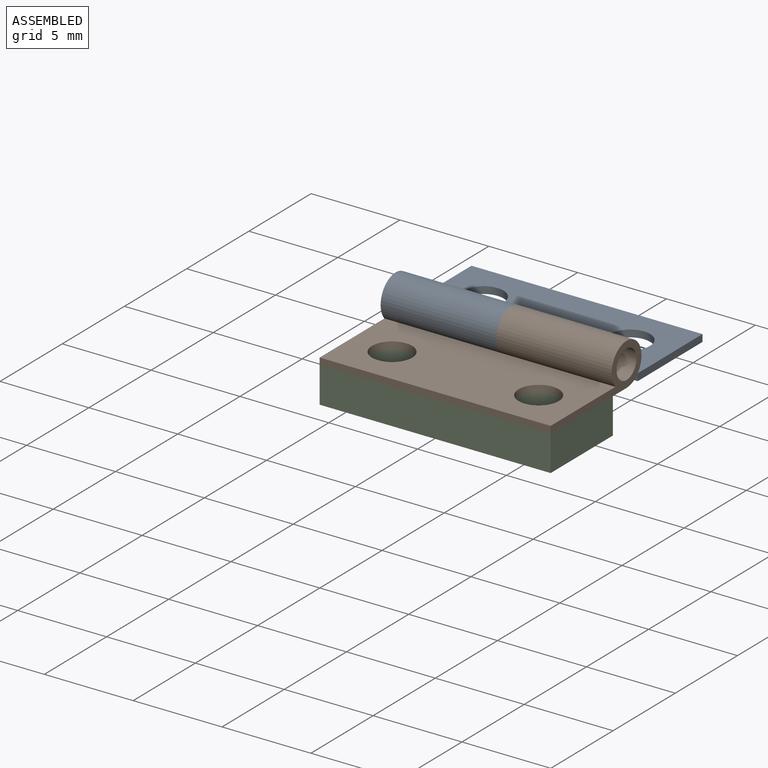
[diagram: assembled view]
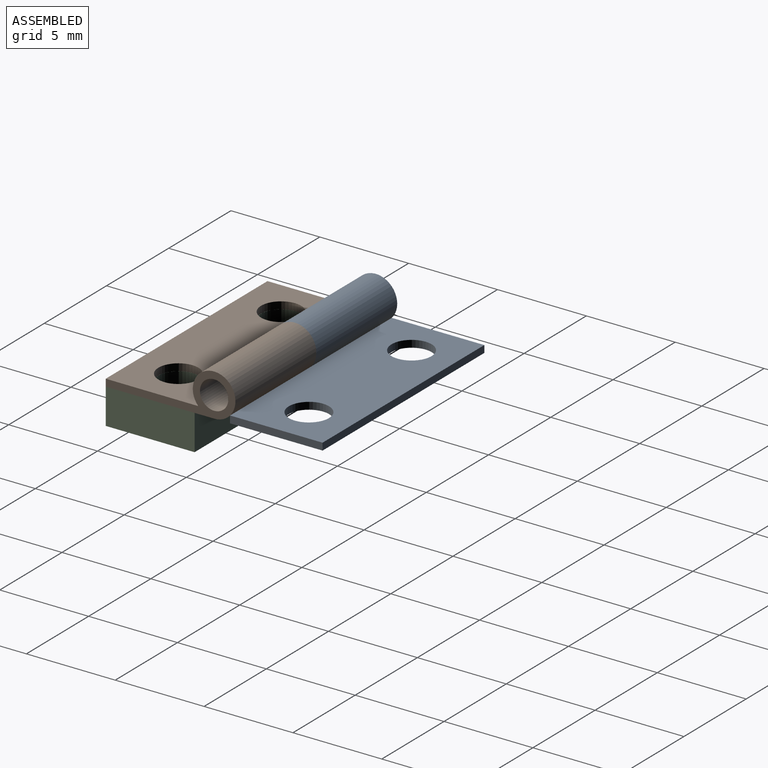
[diagram: assembled view, second angle]
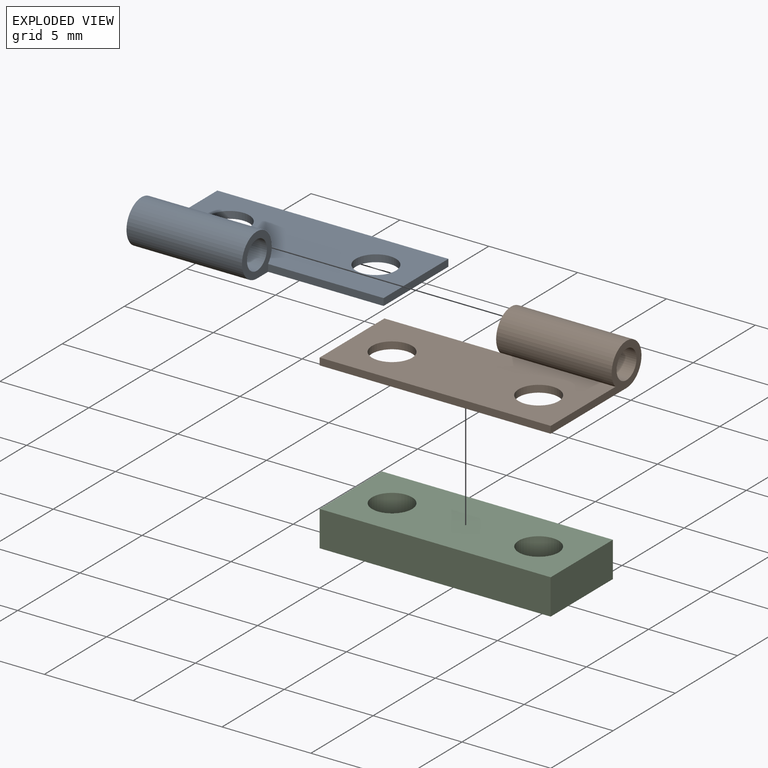
[diagram: exploded view]
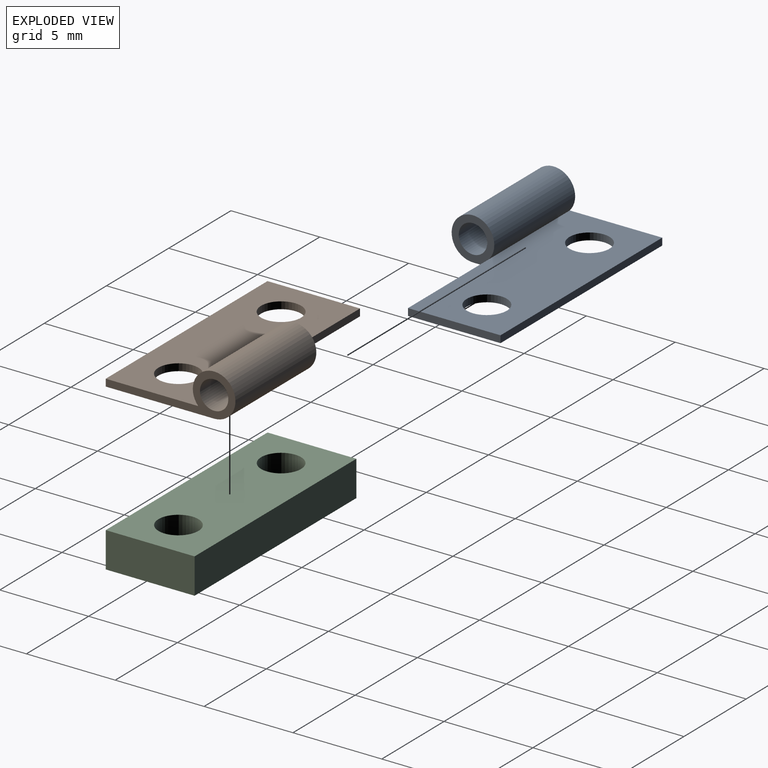
[diagram: exploded view, second angle]
ASSEMBLY  parts=3 mates=2
PART A: 11 faces, bbox 13x7.3x2.4 mm
  f0: plane 13x6.1mm, normal (0,0,-1), area 65.5mm2, adj f2,f4,f5,f6,f7,f8,f9,f10
  f1: plane 13x5.21mm, normal (0,0,1), area 59.6mm2, adj f2,f4,f5,f6,f7,f9,f10
  f2: cylinder r=1.2mm len=6.5mm, axis (-1,0,0), area 42.4mm2, adj f0,f1,f6,f8
  f3: cylinder r=0.8mm len=6.5mm, axis (-1,0,0), area 32.7mm2, adj f6,f8
  f4: plane 5.21x0.4mm, normal (1,0,0), area 2.1mm2, adj f0,f1,f5,f7
  f5: plane 13x0.4mm, normal (0,1,0), area 5.2mm2, adj f0,f1,f4,f6
  f6: plane 7.3x2.4mm, normal (-1,0,0), area 4.7mm2, adj f0,f1,f2,f3,f5
  f7: plane 6.5x0.4mm, normal (0,-1,0), area 2.6mm2, adj f0,f1,f4,f8
  f8: plane 2.4x2.4mm, normal (1,0,0), area 2.6mm2, adj f0,f2,f3,f7
  f9: cylinder r=1.13mm len=2.26mm, axis (0,0,1), area 2.8mm2, adj f0,f1
  f10: cylinder r=1.13mm len=2.26mm, axis (0,0,1), area 2.8mm2, adj f0,f1
PART B: same geometry as A
PART C: 8 faces, bbox 13x5x2 mm
  f0: plane 5x2mm, normal (-1,0,0), area 10mm2, adj f1,f4,f6,f7
  f1: plane 13x2mm, normal (0,-1,0), area 26mm2, adj f0,f2,f6,f7
  f2: plane 5x2mm, normal (1,0,0), area 10mm2, adj f1,f4,f6,f7
  f3: cylinder r=1.12mm len=2.25mm, axis (0,0,-1), area 14.1mm2, adj f6,f7
  f4: plane 13x2mm, normal (0,1,0), area 26mm2, adj f0,f2,f6,f7
  f5: cylinder r=1.12mm len=2.25mm, axis (0,0,-1), area 14.1mm2, adj f6,f7
  f6: plane 13x5mm, normal (0,0,1), area 57mm2, adj f0,f1,f2,f3,f4,f5
  f7: plane 13x5mm, normal (0,0,-1), area 57mm2, adj f0,f1,f2,f3,f4,f5
PLACE A rot(axis=(1,0,0),0.1deg) t=(12.85,4.16,-3.66)mm
PLACE B rot(axis=(0,0,-1),180deg) t=(25.85,4.16,-3.66)mm fixed
PLACE C t=(0,0,-5.66)mm
MATE fastened B.f9 <-> C.f3  axis (0,0,-1) through (15.22,0.49,-3.66)mm
MATE revolute A.f3 <-> B.f2  axis (1,0,0) through (19.35,4.16,-2.46)mm
